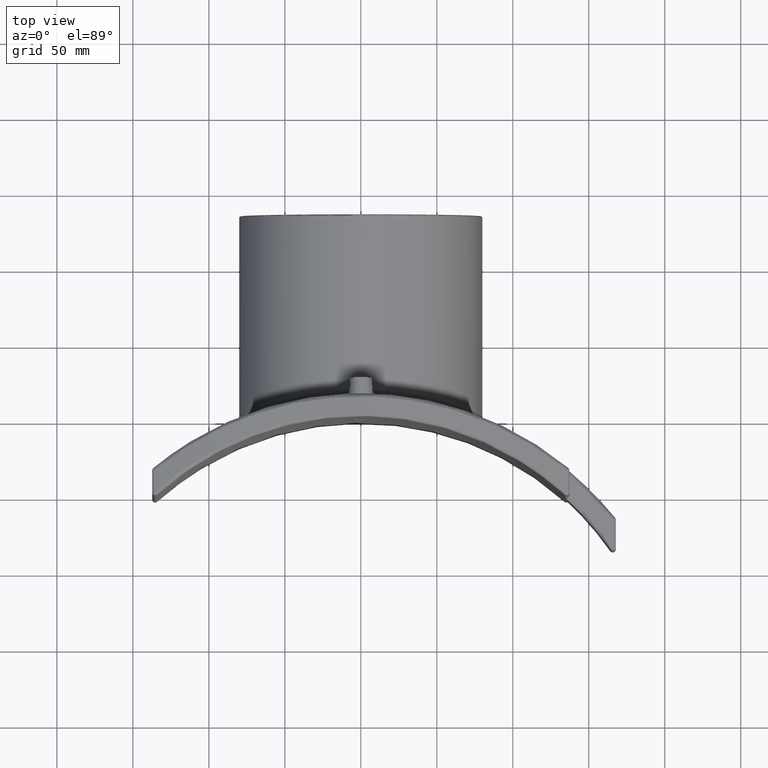
[diagram: clean part render]
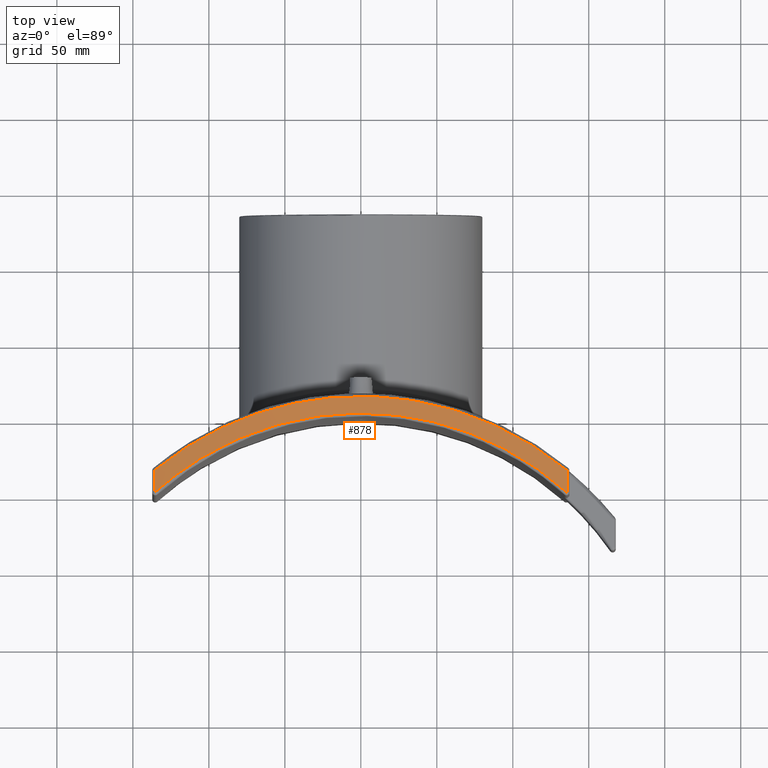
[diagram: same view with one face highlighted and labeled with its STEP entity id]
A machine part, top view. The second image highlights one B-rep face of the part: STEP entity #878.
In plain terms, the highlighted cylindrical surface (partial cylindrical patch) has radius 635.419 mm, axis along (0, -1, 0).
Its self-contained STEP definition (entity closure, byte-faithful):
#43=LINE('',#2086,#73);
#46=LINE('',#2100,#76);
#73=VECTOR('',#1222,14.5110746156313);
#76=VECTOR('',#1229,14.5110746149249);
#105=B_SPLINE_CURVE_WITH_KNOTS('',3,(#1952,#1953,#1954,#1955,#1956,#1957,
#1958,#1959,#1960,#1961),.UNSPECIFIED.,.F.,.F.,(4,1,1,1,1,1,1,4),(1.24723915840258,
5.45993299094655,9.67262682349052,13.8853206560345,18.0980144885785,22.3107083211224,
26.5234021536664,30.7360959862104),.UNSPECIFIED.);
#107=B_SPLINE_CURVE_WITH_KNOTS('',3,(#2052,#2053,#2054,#2055,#2056,#2057,
#2058,#2059,#2060,#2061),.UNSPECIFIED.,.F.,.F.,(4,1,1,1,1,1,1,4),(5.62901959484431,
9.88838150779185,14.1477434207394,18.4071053336869,22.6664672466345,26.925829159582,
31.1851910725295,35.4445529854771),.UNSPECIFIED.);
#140=CYLINDRICAL_SURFACE('',#1004,635.41875);
#241=FACE_OUTER_BOUND('',#329,.T.);
#329=EDGE_LOOP('',(#787,#788,#789,#790));
#441=VERTEX_POINT('',#1867);
#450=VERTEX_POINT('',#1893);
#452=VERTEX_POINT('',#1899);
#456=VERTEX_POINT('',#1976);
#535=EDGE_CURVE('',#441,#452,#105,.T.);
#547=EDGE_CURVE('',#456,#450,#107,.T.);
#555=EDGE_CURVE('',#452,#456,#43,.T.);
#559=EDGE_CURVE('',#450,#441,#46,.T.);
#787=ORIENTED_EDGE('',*,*,#547,.F.);
#788=ORIENTED_EDGE('',*,*,#555,.F.);
#789=ORIENTED_EDGE('',*,*,#535,.F.);
#790=ORIENTED_EDGE('',*,*,#559,.F.);
#878=ADVANCED_FACE('',(#241),#140,.T.);
#1004=AXIS2_PLACEMENT_3D('',#2241,#1280,#1281);
#1222=DIRECTION('',(0.,-1.,0.));
#1229=DIRECTION('',(0.,1.,0.));
#1280=DIRECTION('center_axis',(0.,-1.,0.));
#1281=DIRECTION('ref_axis',(0.215999291805601,0.,0.976393520021246));
#1867=CARTESIAN_POINT('',(-135.677047667903,164.549194771663,135.345880586895));
#1893=CARTESIAN_POINT('',(-135.677047667913,150.038120156738,135.345880586893));
#1899=CARTESIAN_POINT('',(135.677047667913,164.549194772246,135.345880586893));
#1952=CARTESIAN_POINT('Ctrl Pts',(-135.677047667913,164.549194771655,135.345880586893));
#1953=CARTESIAN_POINT('Ctrl Pts',(-124.947257064903,173.34070828475,137.6910308087));
#1954=CARTESIAN_POINT('Ctrl Pts',(-101.731081317846,188.860473008017,142.178087937822));
#1955=CARTESIAN_POINT('Ctrl Pts',(-62.8180006005922,205.032864350755,147.323880941702));
#1956=CARTESIAN_POINT('Ctrl Pts',(-21.2457485192001,213.346344424834,150.116267123296));
#1957=CARTESIAN_POINT('Ctrl Pts',(21.2456488055552,213.345326870385,150.115248337727));
#1958=CARTESIAN_POINT('Ctrl Pts',(62.8185636197855,205.033403634207,147.324507285521));
#1959=CARTESIAN_POINT('Ctrl Pts',(101.730942240176,188.860164007394,142.17778827851));
#1960=CARTESIAN_POINT('Ctrl Pts',(124.946909847074,173.340992779576,137.691106698151));
#1961=CARTESIAN_POINT('Ctrl Pts',(135.677047667631,164.549194771886,135.345880586954));
#1976=CARTESIAN_POINT('',(135.677047667428,150.038120156615,135.345880586999));
#2052=CARTESIAN_POINT('Ctrl Pts',(135.677047667428,150.038120156615,135.345880586999));
#2053=CARTESIAN_POINT('Ctrl Pts',(125.234803077776,159.421524047396,137.628183487545));
#2054=CARTESIAN_POINT('Ctrl Pts',(102.368545638348,176.033588476469,142.070115242369));
#2055=CARTESIAN_POINT('Ctrl Pts',(63.4404818662849,193.413576810373,147.266424298659));
#2056=CARTESIAN_POINT('Ctrl Pts',(21.4962169969167,202.373410710739,150.118851007305));
#2057=CARTESIAN_POINT('Ctrl Pts',(-21.4959207078474,202.371870863032,150.11747830854));
#2058=CARTESIAN_POINT('Ctrl Pts',(-63.4408506636497,193.414865691707,147.267554194443));
#2059=CARTESIAN_POINT('Ctrl Pts',(-102.368789816726,176.032600149156,142.069382741749));
#2060=CARTESIAN_POINT('Ctrl Pts',(-125.234981340339,159.421363860634,137.628144525699));
#2061=CARTESIAN_POINT('Ctrl Pts',(-135.677047667642,150.038120156422,135.345880586952));
#2086=CARTESIAN_POINT('',(135.677047667913,0.,135.345880586893));
#2100=CARTESIAN_POINT('',(-135.677047667913,0.,135.345880586893));
#2241=CARTESIAN_POINT('Origin',(3.5527136788005E-14,0.,-485.41875));